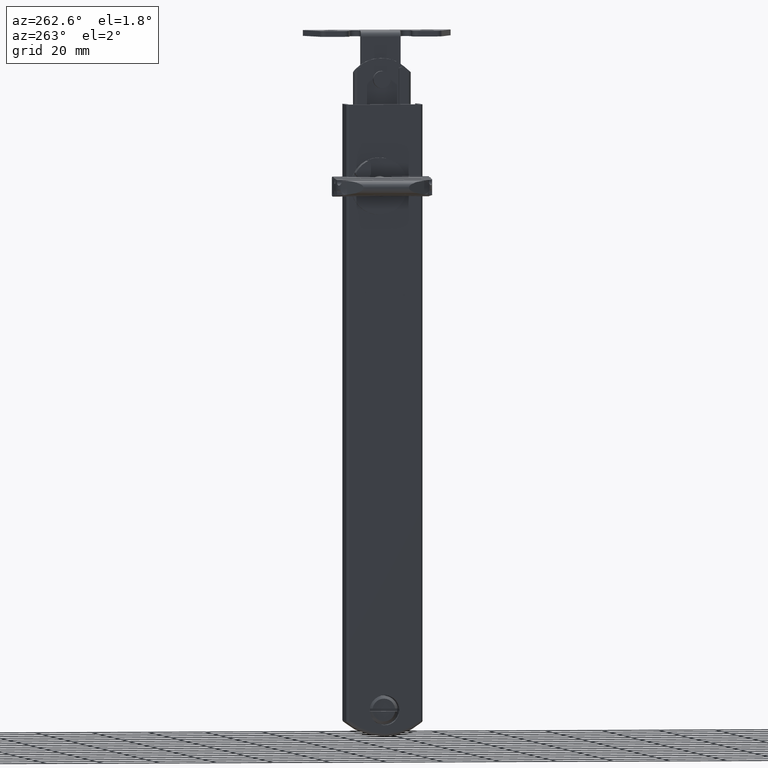
[diagram: clean part render]
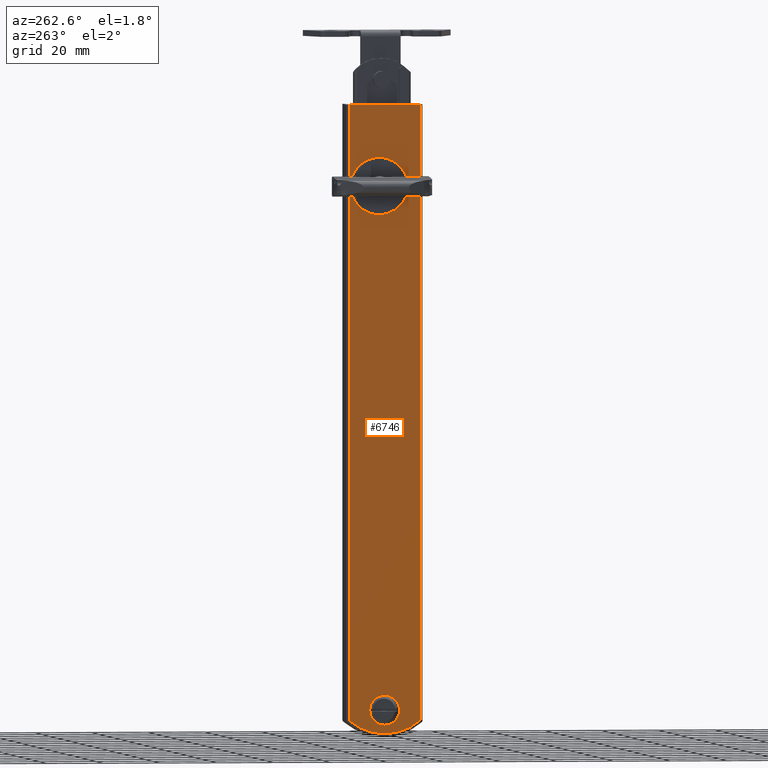
[diagram: same view with one face highlighted and labeled with its STEP entity id]
A machine part, auxiliary view. The second image highlights one B-rep face of the part: STEP entity #6746.
In plain terms, the highlighted face is a freeform B-spline surface patch.
Its self-contained STEP definition (entity closure, byte-faithful):
#5135=CARTESIAN_POINT('',(1.283695E-016,-3.744563892404813,-3.679773102837186));
#5136=VERTEX_POINT('',#5135);
#5142=CARTESIAN_POINT('',(0.0,-5.249999999998275,0.000004254870008));
#5143=VERTEX_POINT('',#5142);
#5144=CARTESIAN_POINT('',(1.283695E-016,-3.744563892404813,-3.679773102837186));
#5145=CARTESIAN_POINT('',(1.167478E-016,-4.072167083247487,-3.346630115559536));
#5146=CARTESIAN_POINT('',(9.162134E-017,-4.611684535858724,-2.626367292690560));
#5147=CARTESIAN_POINT('',(4.741311E-017,-5.130162546979438,-1.359115918782628));
#5148=CARTESIAN_POINT('',(1.629965E-017,-5.250148858941144,-0.467233201868971));
#5149=CARTESIAN_POINT('',(0.0,-5.249999999998275,0.000004254870008));
#5150=B_SPLINE_CURVE_WITH_KNOTS('',3,(#5144,#5145,#5146,#5147,#5148,#5149),.UNSPECIFIED.,.F.,.U.,(4,1,1,4),(0.000000124252379,1.401690211136538,2.675939575367002,4.077629662360200),.UNSPECIFIED.);
#5151=EDGE_CURVE('',#5136,#5143,#5150,.T.);
#5153=CARTESIAN_POINT('',(0.0,0.0,5.250000000000000));
#5154=VERTEX_POINT('',#5153);
#5155=CARTESIAN_POINT('',(0.0,-5.249999999998275,0.000004254870008));
#5156=CARTESIAN_POINT('',(0.0,-5.250757302835526,0.687371740545402));
#5157=CARTESIAN_POINT('',(0.0,-5.053183423903912,1.674667845654701));
#5158=CARTESIAN_POINT('',(0.0,-4.437458562985138,2.860880192708436));
#5159=CARTESIAN_POINT('',(0.0,-3.826800885129034,3.643458759254471));
#5160=CARTESIAN_POINT('',(0.0,-2.977128185306573,4.376405651820307));
#5161=CARTESIAN_POINT('',(0.0,-1.717714949965553,5.049742638121702));
#5162=CARTESIAN_POINT('',(0.0,-0.644358184972748,5.250584063597757));
#5163=CARTESIAN_POINT('',(0.0,0.0,5.250000000000000));
#5164=B_SPLINE_CURVE_WITH_KNOTS('',3,(#5155,#5156,#5157,#5158,#5159,#5160,#5161,#5162,#5163),.UNSPECIFIED.,.F.,.U.,(4,1,1,1,1,1,4),(0.000000369760237,2.061722647321878,2.963767356542071,3.994631336026274,5.025438498852767,6.314028770823699,8.246885259600658),.UNSPECIFIED.);
#5165=EDGE_CURVE('',#5143,#5154,#5164,.T.);
#5167=CARTESIAN_POINT('',(0.0,5.249999999998276,-0.000004254870040));
#5168=VERTEX_POINT('',#5167);
#5169=CARTESIAN_POINT('',(0.0,0.0,5.250000000000000));
#5170=CARTESIAN_POINT('',(0.0,0.515443739969001,5.250209605327144));
#5171=CARTESIAN_POINT('',(0.0,1.331377228487553,5.128819592431555));
#5172=CARTESIAN_POINT('',(0.0,2.412153805042831,4.696542447040747));
#5173=CARTESIAN_POINT('',(0.0,3.250790918726949,4.165504655816974));
#5174=CARTESIAN_POINT('',(0.0,4.000959253452332,3.451280330731356));
#5175=CARTESIAN_POINT('',(0.0,4.597392178452162,2.604430902153095));
#5176=CARTESIAN_POINT('',(0.0,5.104660182373594,1.460178589320195));
#5177=CARTESIAN_POINT('',(0.0,5.250335156922869,0.558412842178102));
#5178=CARTESIAN_POINT('',(0.0,5.249999999998276,-0.000004254870040));
#5179=B_SPLINE_CURVE_WITH_KNOTS('',3,(#5169,#5170,#5171,#5172,#5173,#5174,#5175,#5176,#5177,#5178),.UNSPECIFIED.,.F.,.U.,(4,1,1,1,1,1,1,4),(0.000000363932513,1.546284789272683,2.448300341634694,3.479219392960698,4.509932355191211,5.540848936409606,6.571740946090136,8.246890055950512),.UNSPECIFIED.);
#5180=EDGE_CURVE('',#5154,#5168,#5179,.T.);
#5182=CARTESIAN_POINT('',(1.283695E-016,3.679774587103887,-3.744565416097861));
#5183=VERTEX_POINT('',#5182);
#5184=CARTESIAN_POINT('',(0.0,5.249999999998276,-0.000004254870040));
#5185=CARTESIAN_POINT('',(1.935663E-017,5.250351362401811,-0.564640522563599));
#5186=CARTESIAN_POINT('',(5.061267E-017,5.101364788738398,-1.476384706527337));
#5187=CARTESIAN_POINT('',(9.429267E-017,4.529485372784667,-2.750537755503716));
#5188=CARTESIAN_POINT('',(1.168940E-016,4.020623348629626,-3.409822139060482));
#5189=CARTESIAN_POINT('',(1.283695E-016,3.679774587103887,-3.744565416097861));
#5190=B_SPLINE_CURVE_WITH_KNOTS('',3,(#5184,#5185,#5186,#5187,#5188,#5189),.UNSPECIFIED.,.F.,.U.,(4,1,1,4),(0.000000096991942,1.693792268645241,2.736057497021839,4.169258088642409),.UNSPECIFIED.);
#5191=EDGE_CURVE('',#5168,#5183,#5190,.T.);
#5272=CARTESIAN_POINT('',(0.0,0.0,-5.250000000000000));
#5273=VERTEX_POINT('',#5272);
#5274=CARTESIAN_POINT('',(1.283695E-016,3.679774587103887,-3.744565416097861));
#5275=CARTESIAN_POINT('',(1.125282E-016,3.225673965886904,-4.191574489848238));
#5276=CARTESIAN_POINT('',(7.257832E-017,2.080492388961506,-4.964722649640647));
#5277=CARTESIAN_POINT('',(2.519434E-017,0.722208009538193,-5.250943820220194));
#5278=CARTESIAN_POINT('',(0.0,0.0,-5.250000000000000));
#5279=B_SPLINE_CURVE_WITH_KNOTS('',3,(#5274,#5275,#5276,#5277,#5278),.UNSPECIFIED.,.F.,.U.,(4,1,4),(0.000000124153985,1.911418111785546,4.077626223913553),.UNSPECIFIED.);
#5280=EDGE_CURVE('',#5183,#5273,#5279,.T.);
#5282=CARTESIAN_POINT('',(0.0,0.0,-5.250000000000000));
#5283=CARTESIAN_POINT('',(2.233487E-017,-0.651512491551794,-5.250573492765479));
#5284=CARTESIAN_POINT('',(6.996083E-017,-2.040770753847209,-4.987882048403299));
#5285=CARTESIAN_POINT('',(1.106491E-016,-3.227655961755363,-4.207113853586287));
#5286=CARTESIAN_POINT('',(1.283695E-016,-3.744563892404813,-3.679773102837186));
#5287=B_SPLINE_CURVE_WITH_KNOTS('',3,(#5282,#5283,#5284,#5285,#5286),.UNSPECIFIED.,.F.,.U.,(4,1,4),(0.000000096887910,1.954361498836815,4.169261489905345),.UNSPECIFIED.);
#5288=EDGE_CURVE('',#5273,#5136,#5287,.T.);
#5344=CARTESIAN_POINT('',(5.204170E-017,9.372777708154498,176.744086500810910));
#5345=VERTEX_POINT('',#5344);
#5351=CARTESIAN_POINT('',(0.0,2.000000000000030,173.499985000000010));
#5352=VERTEX_POINT('',#5351);
#5353=CARTESIAN_POINT('',(5.204170E-017,9.372777708154498,176.744086500810910));
#5354=CARTESIAN_POINT('',(4.813031E-017,8.818647714697887,176.139104774270210));
#5355=CARTESIAN_POINT('',(3.878185E-017,7.494246437924431,175.010142620289800));
#5356=CARTESIAN_POINT('',(2.102822E-017,4.979080425736320,173.804710195328710));
#5357=CARTESIAN_POINT('',(7.315190E-018,3.036347082254268,173.499505445276210));
#5358=CARTESIAN_POINT('',(0.0,2.000000000000030,173.499985000000010));
#5359=B_SPLINE_CURVE_WITH_KNOTS('',3,(#5353,#5354,#5355,#5356,#5357,#5358),.UNSPECIFIED.,.F.,.U.,(4,1,1,4),(0.000000091916123,2.461210980241152,5.181484684470991,8.290377799190356),.UNSPECIFIED.);
#5360=EDGE_CURVE('',#5345,#5352,#5359,.T.);
#5362=CARTESIAN_POINT('',(0.0,-7.999999999999476,183.499988145009500));
#5363=VERTEX_POINT('',#5362);
#5364=CARTESIAN_POINT('',(0.0,2.000000000000030,173.499985000000010));
#5365=CARTESIAN_POINT('',(0.0,1.140960694416990,173.499749477400290));
#5366=CARTESIAN_POINT('',(0.0,-0.617914240375720,173.727996391370510));
#5367=CARTESIAN_POINT('',(0.0,-3.135189964804984,174.770200764057390));
#5368=CARTESIAN_POINT('',(0.0,-4.982589462047824,176.230684949611800));
#5369=CARTESIAN_POINT('',(0.0,-6.387675390401191,177.942937587618300));
#5370=CARTESIAN_POINT('',(0.0,-7.232071897827997,179.499584321969990));
#5371=CARTESIAN_POINT('',(0.0,-7.851371346400209,181.454760725840000));
#5372=CARTESIAN_POINT('',(0.0,-8.000167989299133,182.722758532083790));
#5373=CARTESIAN_POINT('',(0.0,-7.999999999999476,183.499988145009500));
#5374=B_SPLINE_CURVE_WITH_KNOTS('',3,(#5364,#5365,#5366,#5367,#5368,#5369,#5370,#5371,#5372,#5373),.UNSPECIFIED.,.F.,.U.,(4,1,1,1,1,1,1,4),(0.000000329128106,2.577090914634489,5.276958074937369,8.099410657608912,9.572063556428940,11.903768483928371,13.376409329722490,15.708063601368380),.UNSPECIFIED.);
#5375=EDGE_CURVE('',#5352,#5363,#5374,.T.);
#5377=CARTESIAN_POINT('',(-7.251536E-018,-6.103530434451512,189.359405571271910));
#5378=VERTEX_POINT('',#5377);
#5379=CARTESIAN_POINT('',(0.0,-7.999999999999476,183.499988145009500));
#5380=CARTESIAN_POINT('',(-1.533677E-018,-8.001265336397847,184.739236423412310));
#5381=CARTESIAN_POINT('',(-4.115012E-018,-7.606676825816755,186.825018017948990));
#5382=CARTESIAN_POINT('',(-6.401465E-018,-6.600460047591318,188.672528184237110));
#5383=CARTESIAN_POINT('',(-7.251536E-018,-6.103530434451512,189.359405571271910));
#5384=B_SPLINE_CURVE_WITH_KNOTS('',3,(#5379,#5380,#5381,#5382,#5383),.UNSPECIFIED.,.F.,.U.,(4,1,4),(0.000000035648179,3.717165593084443,6.260517339997862),.UNSPECIFIED.);
#5385=EDGE_CURVE('',#5363,#5378,#5384,.T.);
#5433=CARTESIAN_POINT('',(0.0,2.000000000000030,193.499985000000010));
#5434=VERTEX_POINT('',#5433);
#5435=CARTESIAN_POINT('',(-7.251536E-018,-6.103530434451512,189.359405571271910));
#5436=CARTESIAN_POINT('',(-6.813098E-018,-5.613579746383525,190.037443641350190));
#5437=CARTESIAN_POINT('',(-6.025025E-018,-4.732914835530918,190.979265093722290));
#5438=CARTESIAN_POINT('',(-4.667419E-018,-3.215801740507876,192.079313143836910));
#5439=CARTESIAN_POINT('',(-3.486499E-018,-1.896133090088110,192.753619746728300));
#5440=CARTESIAN_POINT('',(-1.893310E-018,-0.115758118384723,193.338472619738700));
#5441=CARTESIAN_POINT('',(-7.485775E-019,1.163470918684309,193.500204406377210));
#5442=CARTESIAN_POINT('',(0.0,2.000000000000030,193.499985000000010));
#5443=B_SPLINE_CURVE_WITH_KNOTS('',3,(#5435,#5436,#5437,#5438,#5439,#5440,#5441,#5442),.UNSPECIFIED.,.F.,.U.,(4,1,1,1,1,4),(0.000000135383583,2.509529613187350,3.838119825695352,5.609509275556508,6.938099488029521,9.447628965778215),.UNSPECIFIED.);
#5444=EDGE_CURVE('',#5378,#5434,#5443,.T.);
#5446=CARTESIAN_POINT('',(0.0,11.999999999999540,183.499981854990610));
#5447=VERTEX_POINT('',#5446);
#5448=CARTESIAN_POINT('',(0.0,2.000000000000030,193.499985000000010));
#5449=CARTESIAN_POINT('',(0.0,2.940888217771805,193.500371642250090));
#5450=CARTESIAN_POINT('',(0.0,4.413263257698761,193.290514566038690));
#5451=CARTESIAN_POINT('',(0.0,6.447286335957899,192.520213072559390));
#5452=CARTESIAN_POINT('',(0.0,7.923431125763065,191.623086185492500));
#5453=CARTESIAN_POINT('',(0.0,9.336885564660701,190.373219307068100));
#5454=CARTESIAN_POINT('',(0.0,10.331475901270389,189.114837913144900));
#5455=CARTESIAN_POINT('',(0.0,11.201001885450211,187.534981867670100));
#5456=CARTESIAN_POINT('',(0.0,11.827453340542270,185.749765783086100));
#5457=CARTESIAN_POINT('',(0.0,12.000168944253950,184.277210569625000));
#5458=CARTESIAN_POINT('',(0.0,11.999999999999540,183.499981854990610));
#5459=B_SPLINE_CURVE_WITH_KNOTS('',3,(#5448,#5449,#5450,#5451,#5452,#5453,#5454,#5455,#5456,#5457,#5458),.UNSPECIFIED.,.F.,.U.,(4,1,1,1,1,1,1,1,4),(0.000000329158098,2.822520061983287,4.417904710457986,6.504192765119441,7.976650832187845,10.062928697896369,11.290161738391950,13.376409329720870,15.708063601368300),.UNSPECIFIED.);
#5460=EDGE_CURVE('',#5434,#5447,#5459,.T.);
#5462=CARTESIAN_POINT('',(0.0,11.999999999999540,183.499981854990610));
#5463=CARTESIAN_POINT('',(9.227060E-018,12.001049578514889,182.302152859122710));
#5464=CARTESIAN_POINT('',(2.350595E-017,11.662664612189269,180.448510448826990));
#5465=CARTESIAN_POINT('',(4.067353E-017,10.564230167251230,178.219867715047000));
#5466=CARTESIAN_POINT('',(4.853138E-017,9.790435815120071,177.199785705191200));
#5467=CARTESIAN_POINT('',(5.204170E-017,9.372777708154498,176.744086500810910));
#5468=B_SPLINE_CURVE_WITH_KNOTS('',3,(#5462,#5463,#5464,#5465,#5466,#5467),.UNSPECIFIED.,.F.,.U.,(4,1,1,4),(0.000000067578553,3.592984909771928,5.563261789574760,7.417682412065537),.UNSPECIFIED.);
#5469=EDGE_CURVE('',#5447,#5345,#5468,.T.);
#5572=CARTESIAN_POINT('',(0.0,-12.500000000000000,-3.552740021254000));
#5573=VERTEX_POINT('',#5572);
#5612=CARTESIAN_POINT('',(0.0,-12.500000000000000,211.999985000000010));
#5613=VERTEX_POINT('',#5612);
#5626=CARTESIAN_POINT('',(0.0,-12.500000000000000,-3.552740021254000));
#5627=CARTESIAN_POINT('',(0.0,-12.500000000000000,211.999985000000010));
#5628=QUASI_UNIFORM_CURVE('',1,(#5626,#5627),.UNSPECIFIED.,.F.,.U.);
#5629=EDGE_CURVE('',#5573,#5613,#5628,.T.);
#5657=CARTESIAN_POINT('',(0.0,12.500000000000000,-3.552740021254045));
#5658=VERTEX_POINT('',#5657);
#5686=CARTESIAN_POINT('',(0.0,12.500000000000000,-3.552740021254045));
#5687=CARTESIAN_POINT('',(0.0,11.643872834136340,-4.300699934802486));
#5688=CARTESIAN_POINT('',(0.0,9.508320091898998,-5.852261558910819));
#5689=CARTESIAN_POINT('',(0.0,6.308266457561067,-7.284089233741352));
#5690=CARTESIAN_POINT('',(0.0,2.776506259893342,-8.131753672337833));
#5691=CARTESIAN_POINT('',(0.0,-0.429928223138424,-8.347951403625492));
#5692=CARTESIAN_POINT('',(0.0,-4.253830774446763,-7.895484467884995));
#5693=CARTESIAN_POINT('',(0.0,-8.397149911082439,-6.523969090978032));
#5694=CARTESIAN_POINT('',(0.0,-11.162550544058520,-4.721800421238673));
#5695=CARTESIAN_POINT('',(0.0,-12.500000000000000,-3.552740021254000));
#5696=B_SPLINE_CURVE_WITH_KNOTS('',3,(#5686,#5687,#5688,#5689,#5690,#5691,#5692,#5693,#5694,#5695),.UNSPECIFIED.,.F.,.U.,(4,1,1,1,1,1,1,4),(0.000000215588482,3.410560572155564,7.887058127789139,10.445024097422390,14.281881890602390,17.479383992752599,21.955819762840999,27.284899644626940),.UNSPECIFIED.);
#5697=EDGE_CURVE('',#5658,#5573,#5696,.T.);
#5766=CARTESIAN_POINT('',(0.0,12.500000000000000,211.999985000000010));
#5767=VERTEX_POINT('',#5766);
#5784=CARTESIAN_POINT('',(0.0,12.500000000000000,211.999985000000010));
#5785=CARTESIAN_POINT('',(0.0,12.500000000000000,-3.552740021254045));
#5786=QUASI_UNIFORM_CURVE('',1,(#5784,#5785),.UNSPECIFIED.,.F.,.U.);
#5787=EDGE_CURVE('',#5767,#5658,#5786,.T.);
#6620=CARTESIAN_POINT('',(0.0,-12.500000000000000,211.999985000000010));
#6621=CARTESIAN_POINT('',(0.0,12.500000000000000,211.999985000000010));
#6622=QUASI_UNIFORM_CURVE('',1,(#6620,#6621),.UNSPECIFIED.,.F.,.U.);
#6623=EDGE_CURVE('',#5613,#5767,#6622,.T.);
#6719=CARTESIAN_POINT('',(0.0,13.748749951545150,223.000069154478410));
#6720=CARTESIAN_POINT('',(0.0,-13.748750622097401,223.000069154478410));
#6721=CARTESIAN_POINT('',(0.0,13.748749951545150,-19.222018602479721));
#6722=CARTESIAN_POINT('',(0.0,-13.748750622097401,-19.222018602479721));
#6723=B_SPLINE_SURFACE_WITH_KNOTS('',1,1,((#6719,#6721),(#6720,#6722)),.UNSPECIFIED.,.F.,.F.,.U.,(2,2),(2,2),(0.0,27.497500573642551),(0.0,242.222087756958190),.UNSPECIFIED.);
#6724=ORIENTED_EDGE('',*,*,#6623,.T.);
#6725=ORIENTED_EDGE('',*,*,#5787,.T.);
#6726=ORIENTED_EDGE('',*,*,#5697,.T.);
#6727=ORIENTED_EDGE('',*,*,#5629,.T.);
#6728=EDGE_LOOP('',(#6724,#6725,#6726,#6727));
#6729=FACE_OUTER_BOUND('',#6728,.T.);
#6730=ORIENTED_EDGE('',*,*,#5165,.F.);
#6731=ORIENTED_EDGE('',*,*,#5151,.F.);
#6732=ORIENTED_EDGE('',*,*,#5288,.F.);
#6733=ORIENTED_EDGE('',*,*,#5280,.F.);
#6734=ORIENTED_EDGE('',*,*,#5191,.F.);
#6735=ORIENTED_EDGE('',*,*,#5180,.F.);
#6736=EDGE_LOOP('',(#6730,#6731,#6732,#6733,#6734,#6735));
#6737=FACE_BOUND('',#6736,.T.);
#6738=ORIENTED_EDGE('',*,*,#5460,.F.);
#6739=ORIENTED_EDGE('',*,*,#5444,.F.);
#6740=ORIENTED_EDGE('',*,*,#5385,.F.);
#6741=ORIENTED_EDGE('',*,*,#5375,.F.);
#6742=ORIENTED_EDGE('',*,*,#5360,.F.);
#6743=ORIENTED_EDGE('',*,*,#5469,.F.);
#6744=EDGE_LOOP('',(#6738,#6739,#6740,#6741,#6742,#6743));
#6745=FACE_BOUND('',#6744,.T.);
#6746=ADVANCED_FACE('',(#6729,#6737,#6745),#6723,.F.);